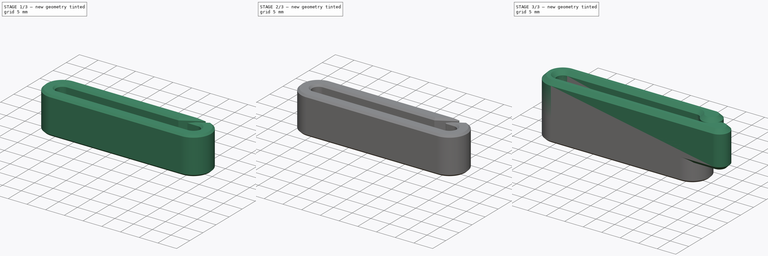
[diagram: build sequence overview — one tinted view per stage of 3, left to right]
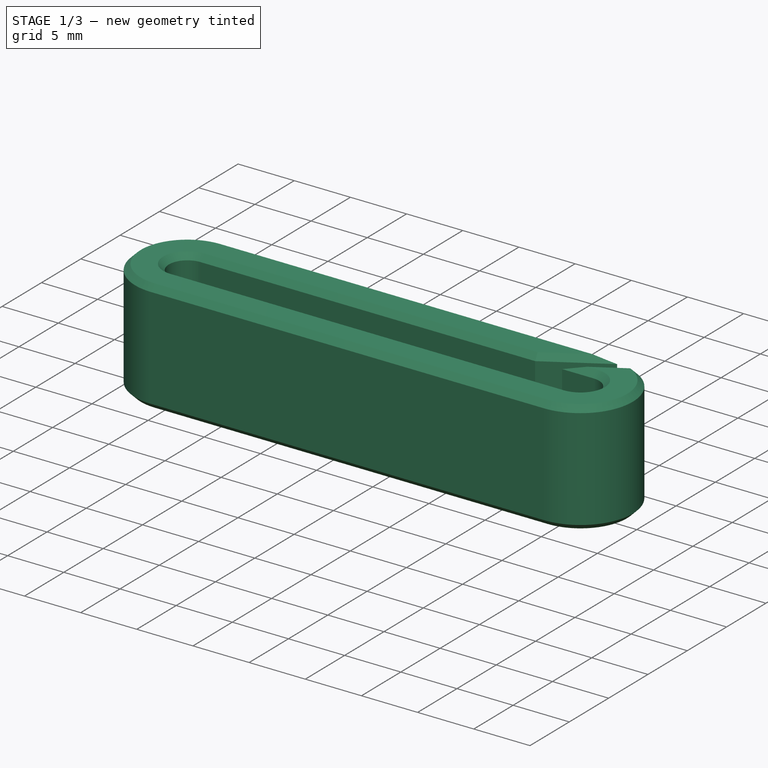
[diagram: stage 1 of 3 — iso view after this stage's code; geometry added in this stage tinted green]
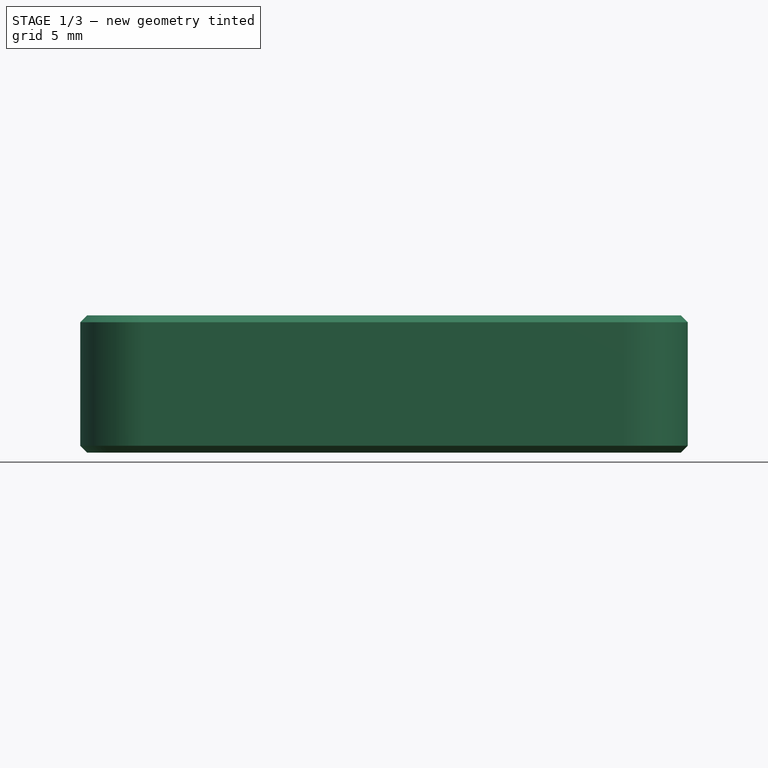
[diagram: stage 1 of 3 — front view after this stage's code; geometry added in this stage tinted green]
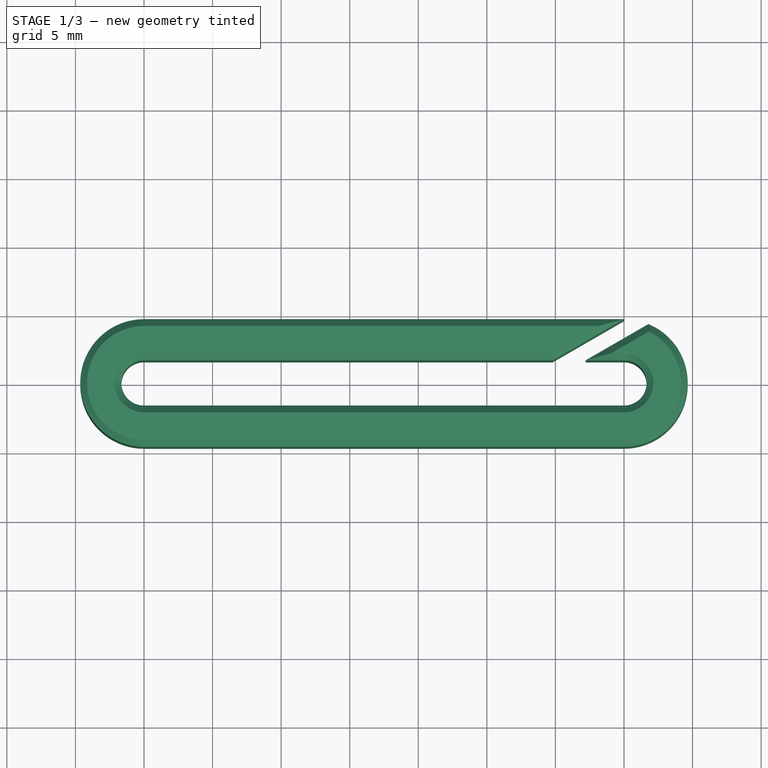
[diagram: stage 1 of 3 — top view after this stage's code; geometry added in this stage tinted green]
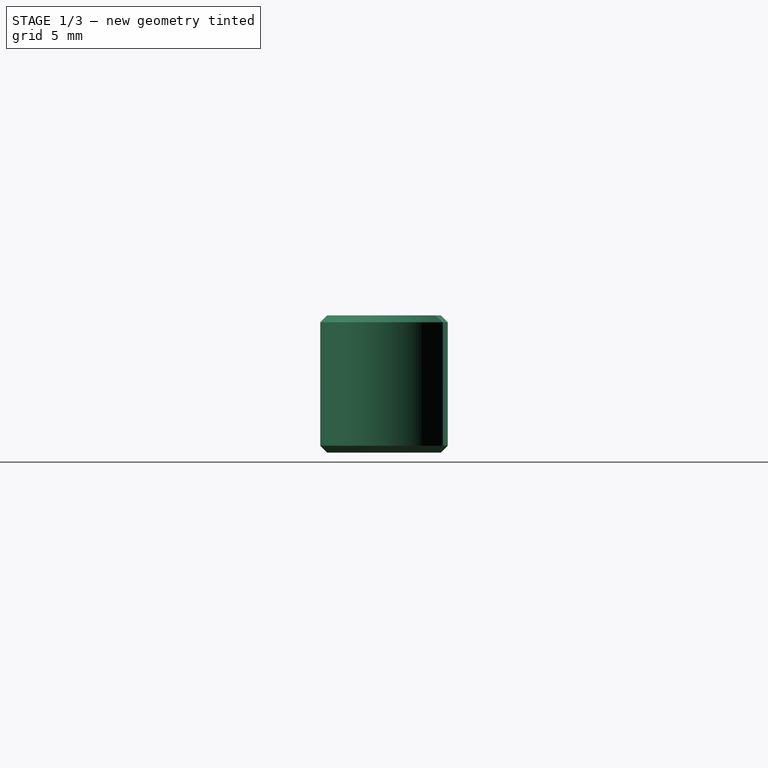
[diagram: stage 1 of 3 — right view after this stage's code; geometry added in this stage tinted green]
FCSTD DOCUMENT  (FreeCAD 2023.131R26244 +5365 (Git))
Label: belt clip
License: All rights reserved
LicenseURL: http://en.wikipedia.org/wiki/All_rights_reserved
objects: Sketcher::SketchObject×5, PartDesign::Pad×2, PartDesign::Chamfer×2, PartDesign::Body×2, PartDesign::Revolution×2, PartDesign::Pocket×1, PartDesign::Fillet×1
note: 36 computed .brp shape members not serialized (recipe doc carries the construction recipe); baked Part::Feature solids carry a one-line shape summary decoded from their .brp

FEATURE [PartDesign::Body] Body  label="clip"
  AutoGroupSolids = false
  ClaimAllChildren = false
  ExportMode = 0
  FixShape = 1
  Group = -> [Sketch,Pad,Chamfer]
  InvalidShape = false
  Origin = -> Origin
  Tip = -> Chamfer
  TreeRank = 12
  ValidateShape = false
  _ExportChildren = -> [Pad,Chamfer]
  _GroupVersion = 1
FEATURE [Sketcher::SketchObject] Sketch001
  ArcFitTolerance = 1e-06
  AttachmentSupport = -> [XY_Plane001]
  ExternalBSplineMaxDegree = 5
  ExternalBSplineTolerance = 0.0001
  FixShape = 1
  FullyConstrained = true
  InternalTolerance = 1e-06
  InvalidShape = false
  MakeInternals = false
  MapMode = 5
  Support = -> [XY_Plane001]
  TreeRank = 28
  ValidateShape = false
  sketch-geometry (11):
    g0: ArcOfCircle [constr] CenterX=0 CenterY=0 CenterZ=0 NormalX=0 NormalY=0 NormalZ=1 AngleXU=0 Radius=1.65 StartAngle=1.5708 EndAngle=4.71239
    g1: ArcOfCircle [constr] CenterX=35 CenterY=0 CenterZ=0 NormalX=0 NormalY=0 NormalZ=1 AngleXU=0 Radius=1.65 StartAngle=4.71239 EndAngle=7.85398
    g2: LineSegment StartX=0 StartY=-1.65 StartZ=0 EndX=35 EndY=-1.65 EndZ=0
    g3: LineSegment [constr] StartX=35 StartY=1.65 StartZ=0 EndX=0 EndY=1.65 EndZ=0
    g4: ArcOfCircle CenterX=0 CenterY=0 CenterZ=0 NormalX=0 NormalY=0 NormalZ=1 AngleXU=0 Radius=1.65 StartAngle=1.5708 EndAngle=4.71239
    g5: LineSegment StartX=35 StartY=1.65 StartZ=0 EndX=0 EndY=1.65 EndZ=0
    g6: ArcOfCircle CenterX=0 CenterY=0 CenterZ=0 NormalX=0 NormalY=0 NormalZ=1 AngleXU=0 Radius=4.65 StartAngle=1.5708 EndAngle=4.71239
    g7: ArcOfCircle CenterX=35 CenterY=-1e-16 CenterZ=0 NormalX=0 NormalY=0 NormalZ=1 AngleXU=0 Radius=1.65 StartAngle=4.71238 EndAngle=7.85398
    g8: ArcOfCircle CenterX=35 CenterY=-1e-16 CenterZ=0 NormalX=0 NormalY=0 NormalZ=1 AngleXU=0 Radius=4.65 StartAngle=4.71239 EndAngle=7.85398
    g9: LineSegment StartX=6e-16 StartY=4.65 StartZ=0 EndX=35 EndY=4.65 EndZ=0
    g10: LineSegment StartX=1.3402e-05 StartY=-4.65 StartZ=0 EndX=35 EndY=-4.65 EndZ=0
  constraints (25):
    c: Tangent(g0,g2) = -1.5708
    c: Tangent(g2,g1) = -1.5708
    c: Tangent(g1,g3) = -1.5708
    c: Tangent(g3,g0) = -1.5708
    c: Equal(g0,g1)
    c: Coincident(g0,g-1)
    c: PointOnObject(g1,g-1)
    c: DistanceX(g3,g3) = 35
    c: Diameter(g1) = 3.3
    c: Tangent(g5,g4) = -1.5708
    c: Coincident(g4,g0)
    c: Coincident(g6,g4)
    c: DistanceY(g4,g6) = 3
    c: Horizontal(g5)
    c: Tangent(g5,g7) = -1.5708
    c: Equal(g7,g1)
    c: Coincident(g7,g1)
    c: Coincident(g8,g7)
    c: Horizontal(g9)
    c: Coincident(g10,g6)
    c: Horizontal(g10)
    c: Tangent(g10,g8) = -1.5708
    c: Tangent(g9,g8) = 1.5708
    c: Tangent(g9,g6) = 1.5708
    c: Coincident(g2,g4)
FEATURE [PartDesign::Pad] Pad001
  AddSubType = 0
  AlongSketchNormal = false
  AutoTaperInnerAngle = true
  CheckUpToFaceLimits = true
  ClaimChildren = false
  Direction = (0,0,1)
  Fit = 0
  FitJoin = 0
  FixShape = 1
  InnerFit = 0
  InnerFitJoin = 0
  InvalidShape = false
  Length = 10
  Length2 = 100
  Linearize = true
  Midplane = true
  NewSolid = false
  Profile = -> Sketch001
  Refine = true
  Suppress = false
  TaperInnerAngle = 0
  TaperInnerAngleRev = 0
  TreeRank = 29
  Type = 0
  ValidateShape = false
  _ProfileBasedVersion = 1
FEATURE [Sketcher::SketchObject] Sketch002
  ArcFitTolerance = 1e-06
  AttachmentSupport = -> [XY_Plane001]
  ExternalBSplineMaxDegree = 5
  ExternalBSplineTolerance = 0.0001
  ExternalGeometry = -> [Sketch001]
  FixShape = 1
  FullyConstrained = true
  InternalTolerance = 1e-06
  InvalidShape = false
  MakeInternals = false
  MapMode = 5
  Support = -> [XY_Plane001]
  TreeRank = 30
  ValidateShape = false
  sketch-geometry (5):
    g0: LineSegment StartX=32.2039 StartY=1.65 StartZ=0 EndX=37.4 EndY=4.65 EndZ=0
    g1: LineSegment StartX=35 StartY=4.65 StartZ=0 EndX=29.8039 EndY=1.65 EndZ=0
    g2: LineSegment [constr] StartX=35 StartY=4.65 StartZ=0 EndX=35.6 EndY=3.61077 EndZ=0
    g3: LineSegment StartX=29.8039 StartY=1.65 StartZ=0 EndX=32.2039 EndY=1.65 EndZ=0
    g4: LineSegment StartX=35 StartY=4.65 StartZ=0 EndX=37.4 EndY=4.65 EndZ=0
  constraints (14):
    c: PointOnObject(g0,g-3)
    c: PointOnObject(g0,g-4)
    c: PointOnObject(g1,g-3)
    c: Coincident(g2,g1)
    c: PointOnObject(g2,g0)
    c: Parallel(g0,g1)
    c: Perpendicular(g0,g2)
    c: Coincident(g3,g1)
    c: Coincident(g3,g0)
    c: Coincident(g4,g1)
    c: Coincident(g4,g0)
    c: Distance(g2) = 1.2
    c: Coincident(g1,g-4)
    c: Angle(g0) = 0.523599
FEATURE [PartDesign::Pocket] Pocket
  AddSubType = 1
  AutoTaperInnerAngle = true
  BaseFeature = -> Pad001
  CheckUpToFaceLimits = true
  ClaimChildren = false
  Fit = 0
  FitJoin = 0
  FixShape = 1
  InnerFit = 0
  InnerFitJoin = 0
  InvalidShape = false
  Length = 5
  Length2 = 100
  Linearize = true
  Midplane = true
  NewSolid = false
  Profile = -> Sketch002
  Refine = true
  Suppress = false
  TaperInnerAngle = 0
  TaperInnerAngleRev = 0
  TreeRank = 31
  Type = 1
  ValidateShape = false
  _ProfileBasedVersion = 1
  _Version = 1
FEATURE [PartDesign::Chamfer] Chamfer001
  AddSubType = 0
  Angle = 45
  Base = -> Pocket [Face5,Face4]
  BaseFeature = -> Pocket
  ChamferType = 0
  FixShape = 1
  FlipDirection = false
  InvalidShape = false
  NewSolid = false
  Refine = true
  Size = 0.5
  Size2 = 1
  SupportTransform = false
  Suppress = false
  TreeRank = 32
  ValidateShape = false
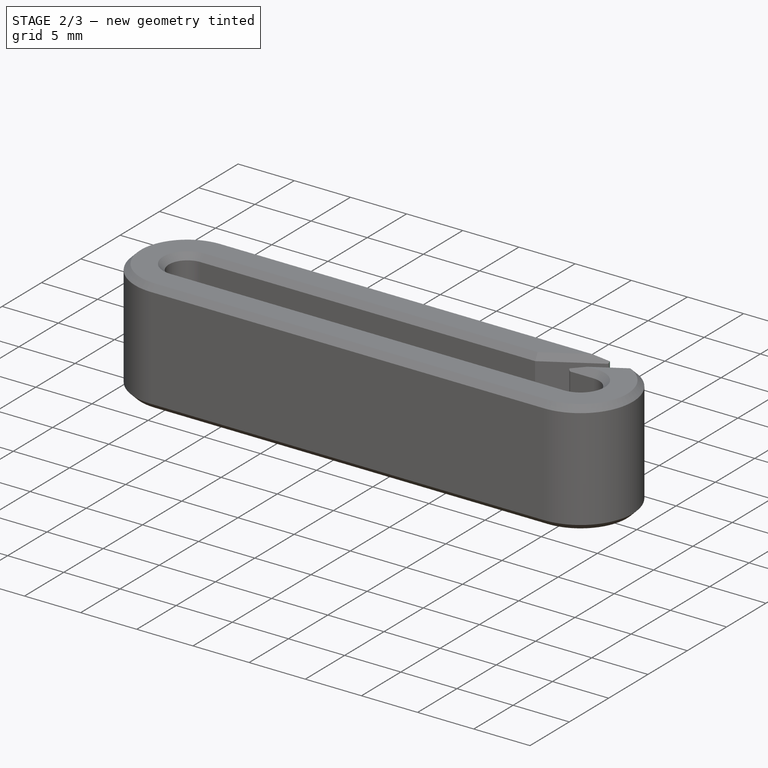
[diagram: stage 2 of 3 — iso view after this stage's code; geometry added in this stage tinted green]
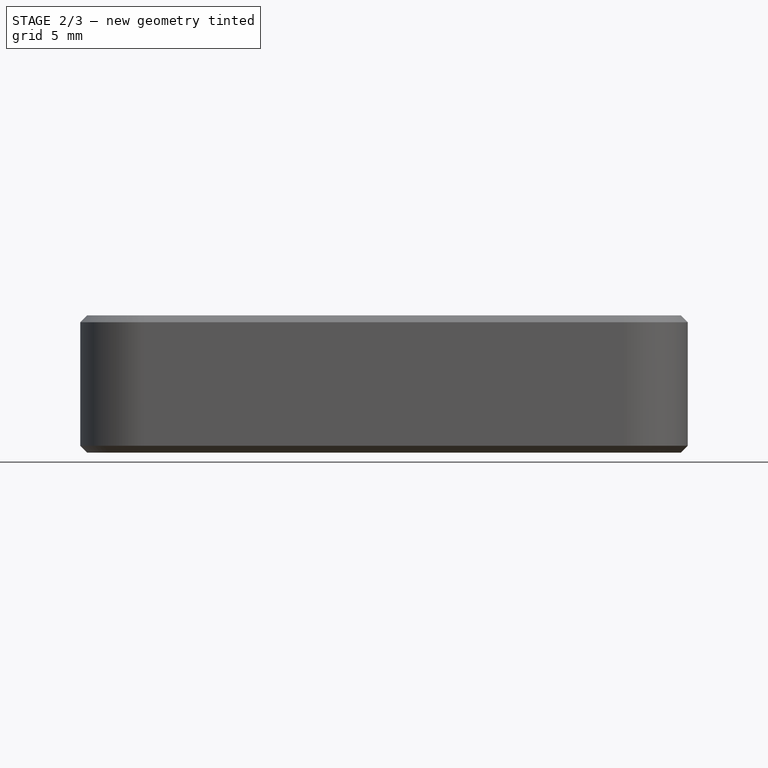
[diagram: stage 2 of 3 — front view after this stage's code; geometry added in this stage tinted green]
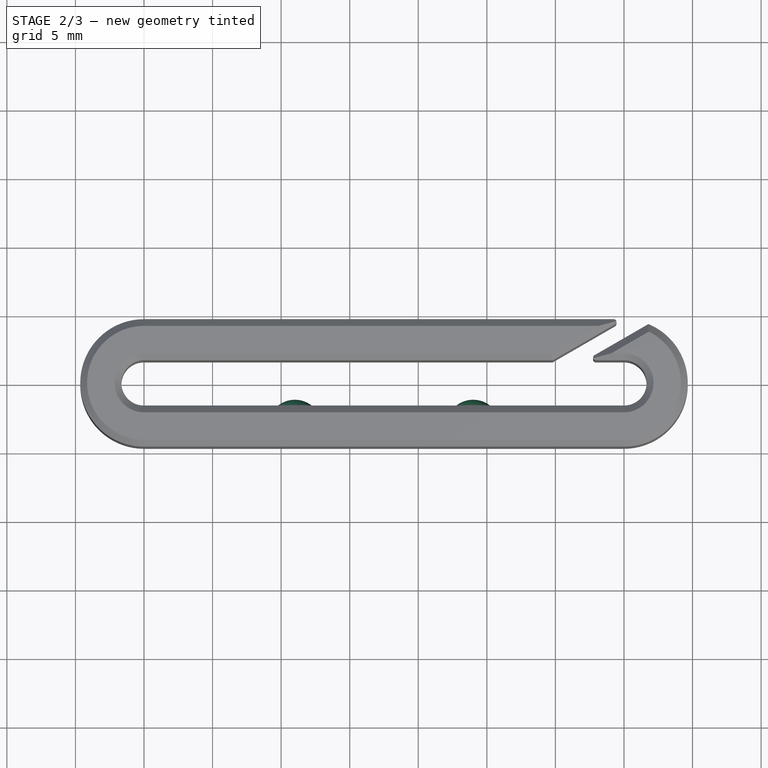
[diagram: stage 2 of 3 — top view after this stage's code; geometry added in this stage tinted green]
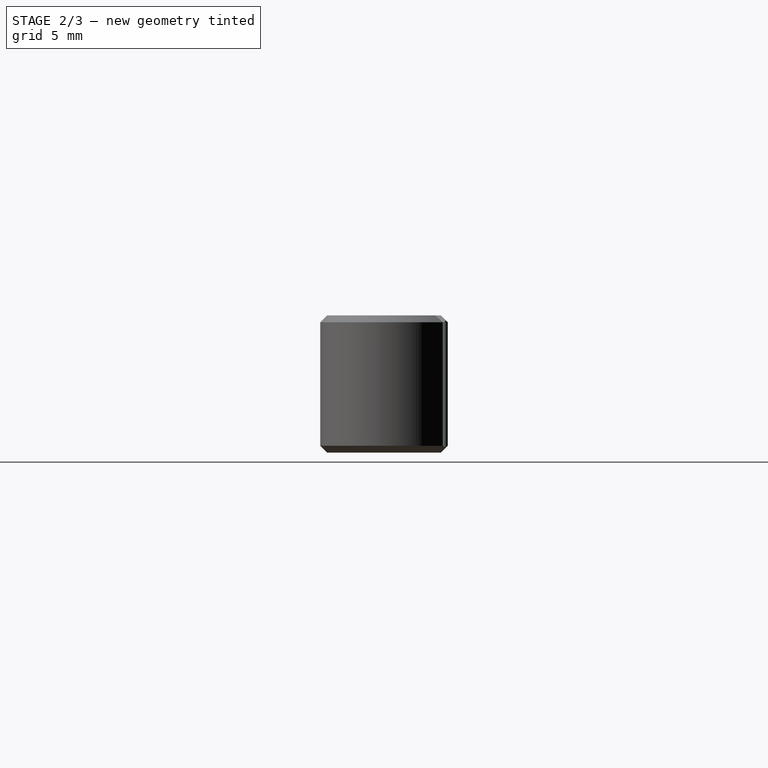
[diagram: stage 2 of 3 — right view after this stage's code; geometry added in this stage tinted green]
FEATURE [PartDesign::Fillet] Fillet
  AddSubType = 0
  Base = -> Chamfer001 [Edge74,Edge7]
  BaseFeature = -> Chamfer001
  FixShape = 1
  InvalidShape = false
  NewSolid = false
  Radius = 0.2
  Refine = true
  SupportTransform = false
  Suppress = false
  TreeRank = 33
  ValidateShape = false
FEATURE [Sketcher::SketchObject] Sketch003
  ArcFitTolerance = 1e-06
  AttachmentOffset = pos=(0,0,-1.5) rot=(0,0,1;0rad)
  AttachmentSupport = -> [Fillet]
  ExternalBSplineMaxDegree = 5
  ExternalBSplineTolerance = 0.0001
  ExternalGeometry = -> [Sketch001]
  FixShape = 1
  FullyConstrained = true
  InternalTolerance = 1e-06
  InvalidShape = false
  MakeInternals = false
  MapMode = 5
  Placement = pos=(0,-3.15,3e-16) rot=(0,0.707107,0.707107;3.14159rad)
  Support = -> [Fillet]
  TreeRank = 34
  ValidateShape = false
  sketch-geometry (11):
    g0: ArcOfCircle CenterX=-11 CenterY=0 CenterZ=0 NormalX=0 NormalY=0 NormalZ=1 AngleXU=0 Radius=2 StartAngle=0 EndAngle=3.14159
    g1: LineSegment StartX=-13 StartY=0 StartZ=0 EndX=-9 EndY=0 EndZ=0
    g2: LineSegment [constr] StartX=-13 StartY=0 StartZ=0 EndX=-11 EndY=0 EndZ=0
    g3: LineSegment [constr] StartX=-9 StartY=0 StartZ=0 EndX=-11 EndY=0 EndZ=0
    g4: ArcOfCircle CenterX=-24 CenterY=0 CenterZ=0 NormalX=0 NormalY=0 NormalZ=1 AngleXU=0 Radius=2 StartAngle=0 EndAngle=3.14159
    g5: LineSegment StartX=-26 StartY=0 StartZ=0 EndX=-22 EndY=0 EndZ=0
    g6: LineSegment [constr] StartX=-26 StartY=0 StartZ=0 EndX=-24 EndY=0 EndZ=0
    g7: LineSegment [constr] StartX=-22 StartY=0 StartZ=0 EndX=-24 EndY=0 EndZ=0
    g8: LineSegment [constr] StartX=-35 StartY=0 StartZ=0 EndX=-26 EndY=0 EndZ=0
    g9: LineSegment [constr] StartX=-22 StartY=0 StartZ=0 EndX=-13 EndY=0 EndZ=0
    g10: LineSegment [constr] StartX=-9 StartY=0 StartZ=0 EndX=0 EndY=0 EndZ=0
  constraints (28):
    c: PointOnObject(g0,g-1)
    c: PointOnObject(g0,g-1)
    c: Coincident(g1,g0)
    c: Coincident(g1,g0)
    c: Coincident(g2,g0)
    c: Coincident(g2,g0)
    c: Coincident(g3,g0)
    c: Coincident(g3,g0)
    c: Radius(g0) = 2
    c: Coincident(g5,g4)
    c: Coincident(g5,g4)
    c: Coincident(g6,g4)
    c: Coincident(g6,g4)
    c: Coincident(g7,g4)
    c: Coincident(g7,g4)
    c: Equal(g0,g4) = 2
    c: PointOnObject(g7,g-1)
    c: PointOnObject(g4,g-3)
    c: Coincident(g8,g-3)
    c: Coincident(g8,g4)
    c: Coincident(g9,g4)
    c: Coincident(g9,g0)
    c: Coincident(g10,g0)
    c: Coincident(g10,g-3)
    c: Equal(g8,g9)
    c: Equal(g9,g10)
    c: Horizontal(g0,g-3)
    c: Horizontal(g4,g-3)
FEATURE [PartDesign::Revolution] Revolution
  AddSubType = 0
  Angle = 180
  Axis = (-1,0,0)
  Base = (0,-3.15,3e-16)
  BaseFeature = -> Fillet
  ClaimChildren = false
  Fit = 0
  FitJoin = 0
  FixShape = 1
  InnerFit = 0
  InnerFitJoin = 0
  InvalidShape = false
  Linearize = true
  NewSolid = false
  Profile = -> Sketch003
  ReferenceAxis = -> Sketch003 [H_Axis]
  Refine = true
  Suppress = false
  TreeRank = 35
  ValidateShape = false
  _ProfileBasedVersion = 1
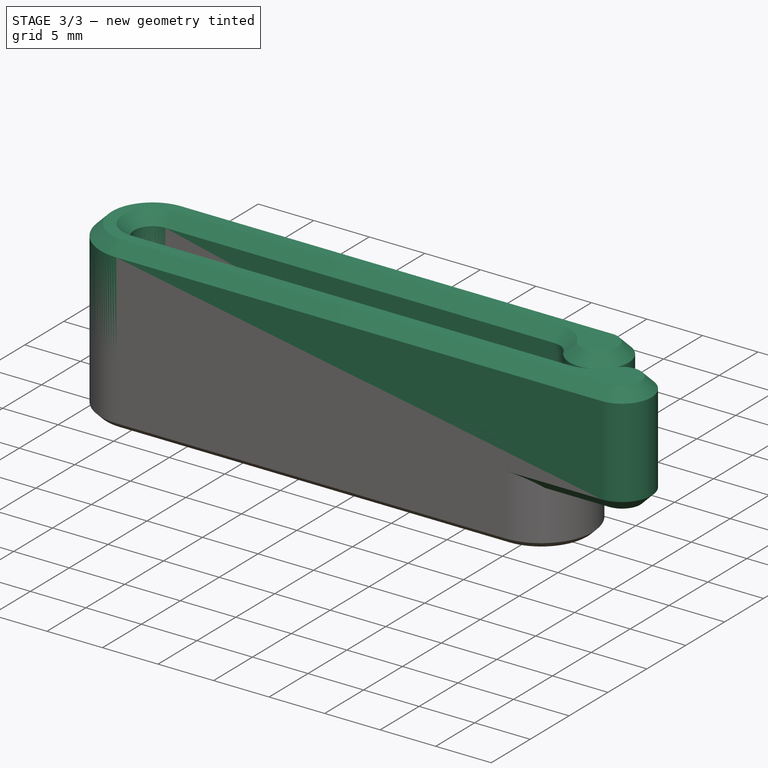
[diagram: stage 3 of 3 — iso view after this stage's code; geometry added in this stage tinted green]
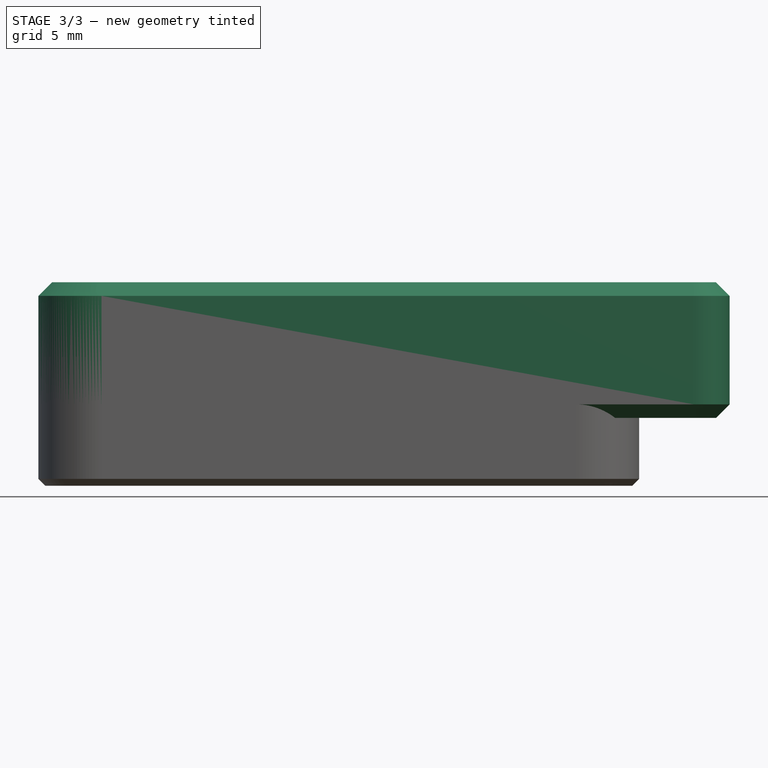
[diagram: stage 3 of 3 — front view after this stage's code; geometry added in this stage tinted green]
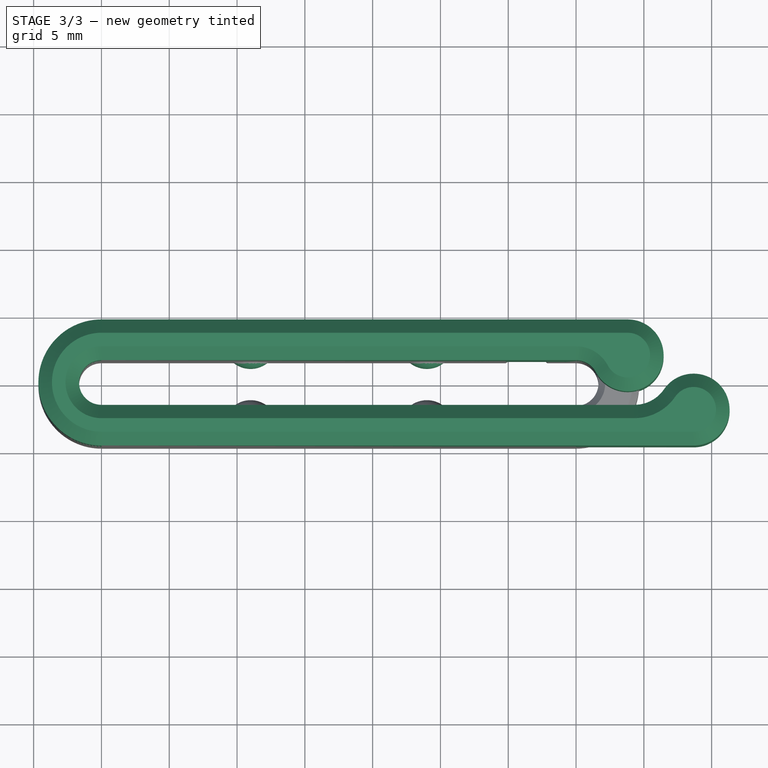
[diagram: stage 3 of 3 — top view after this stage's code; geometry added in this stage tinted green]
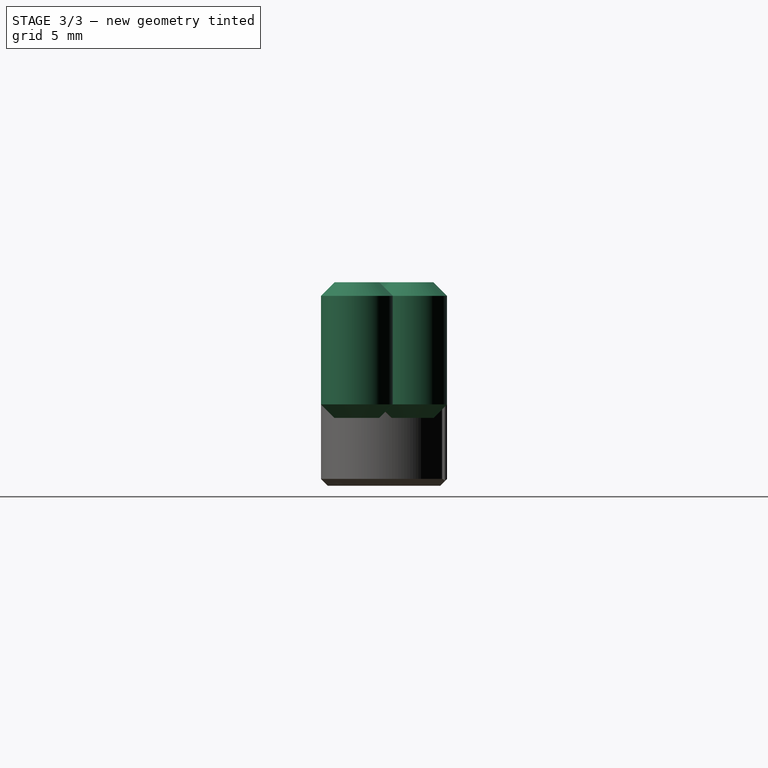
[diagram: stage 3 of 3 — right view after this stage's code; geometry added in this stage tinted green]
FEATURE [Sketcher::SketchObject] Sketch
  ArcFitTolerance = 1e-06
  AttachmentSupport = -> [XY_Plane]
  ExternalBSplineMaxDegree = 5
  ExternalBSplineTolerance = 0.0001
  FixShape = 1
  FullyConstrained = true
  InternalTolerance = 1e-06
  InvalidShape = false
  MakeInternals = false
  MapMode = 5
  Support = -> [XY_Plane]
  TreeRank = 13
  ValidateShape = false
  sketch-geometry (16):
    g0: ArcOfCircle [constr] CenterX=0 CenterY=0 CenterZ=0 NormalX=0 NormalY=0 NormalZ=1 AngleXU=0 Radius=1.65 StartAngle=1.5708 EndAngle=4.71239
    g1: ArcOfCircle [constr] CenterX=35 CenterY=0 CenterZ=0 NormalX=0 NormalY=0 NormalZ=1 AngleXU=0 Radius=1.65 StartAngle=4.71239 EndAngle=7.85398
    g2: LineSegment [constr] StartX=0 StartY=-1.65 StartZ=0 EndX=35 EndY=-1.65 EndZ=0
    g3: LineSegment [constr] StartX=35 StartY=1.65 StartZ=0 EndX=0 EndY=1.65 EndZ=0
    g4: ArcOfCircle CenterX=38.8066 CenterY=2 CenterZ=0 NormalX=0 NormalY=0 NormalZ=1 AngleXU=0 Radius=2.65 StartAngle=3.62536 EndAngle=7.85398
    g5: ArcOfCircle CenterX=43.6738 CenterY=-2 CenterZ=0 NormalX=0 NormalY=0 NormalZ=1 AngleXU=0 Radius=2.65 StartAngle=4.71239 EndAngle=8.82309
    g6: ArcOfCircle CenterX=0 CenterY=0 CenterZ=0 NormalX=0 NormalY=0 NormalZ=1 AngleXU=0 Radius=1.65 StartAngle=1.5708 EndAngle=4.71239
    g7: LineSegment StartX=0 StartY=-1.65 StartZ=0 EndX=39.3046 EndY=-1.65 EndZ=0
    g8: LineSegment StartX=35 StartY=1.65 StartZ=0 EndX=0 EndY=1.65 EndZ=0
    g9: ArcOfCircle CenterX=0 CenterY=0 CenterZ=0 NormalX=0 NormalY=0 NormalZ=1 AngleXU=0 Radius=4.65 StartAngle=1.5708 EndAngle=4.71239
    g10: LineSegment StartX=0 StartY=-4.65 StartZ=0 EndX=43.6738 EndY=-4.65 EndZ=0
    g11: LineSegment StartX=38.8066 StartY=4.65 StartZ=0 EndX=0 EndY=4.65 EndZ=0
    g12: LineSegment [constr] StartX=38.8066 StartY=-0.65 StartZ=0 EndX=38.8066 EndY=-1.65 EndZ=0
    g13: LineSegment [constr] StartX=40.8539 StartY=0.31746 StartZ=0 EndX=41.6265 EndY=-0.31746 EndZ=0
    g14: ArcOfCircle CenterX=39.3046 CenterY=1 CenterZ=0 NormalX=0 NormalY=0 NormalZ=1 AngleXU=0 Radius=2.65 StartAngle=4.71239 EndAngle=5.68149
    g15: ArcOfCircle CenterX=35 CenterY=1e-16 CenterZ=0 NormalX=0 NormalY=0 NormalZ=1 AngleXU=0 Radius=1.65 StartAngle=0.483766 EndAngle=1.5708
  constraints (41):
    c: Tangent(g0,g2) = -1.5708
    c: Tangent(g2,g1) = -1.5708
    c: Tangent(g1,g3) = -1.5708
    c: Tangent(g3,g0) = -1.5708
    c: Equal(g0,g1)
    c: Coincident(g0,g-1)
    c: PointOnObject(g1,g-1)
    c: DistanceX(g3,g3) = 35
    c: Diameter(g1) = 3.3
    c: Tangent(g6,g7) = -1.5708
    c: Tangent(g8,g6) = -1.5708
    c: Coincident(g6,g0)
    c: Tangent(g9,g10) = -1.5708
    c: Tangent(g11,g9) = -1.5708
    c: Coincident(g9,g6)
    c: DistanceY(g6,g9) = 3
    c: Horizontal(g10)
    c: Horizontal(g7)
    c: Equal(g6,g0)
    c: Horizontal(g8)
    c: Horizontal(g11)
    c: Tangent(g5,g10) = -1.5708
    c: Tangent(g4,g11) = -1.5708
    c: Tangent(g4,g1)
    c: PointOnObject(g12,g4)
    c: PointOnObject(g12,g7)
    c: Vertical(g12)
    c: Perpendicular(g4,g12)
    c: DistanceY(g12,g12) = 1
    c: PointOnObject(g13,g4)
    c: PointOnObject(g13,g5)
    c: Perpendicular(g4,g13)
    c: Perpendicular(g5,g13)
    c: Equal(g4,g5)
    c: Equal(g12,g13)
    c: Tangent(g7,g14) = -1.5708
    c: Tangent(g5,g14) = 1.5708
    c: Tangent(g8,g15) = -1.5708
    c: Tangent(g4,g15) = 1.5708
    c: Equal(g5,g14)
    c: Equal(g15,g1)
FEATURE [PartDesign::Pad] Pad
  AddSubType = 0
  AlongSketchNormal = false
  AutoTaperInnerAngle = true
  CheckUpToFaceLimits = true
  ClaimChildren = false
  Direction = (0,0,1)
  Fit = 0
  FitJoin = 0
  FixShape = 1
  InnerFit = 0
  InnerFitJoin = 0
  InvalidShape = false
  Length = 10
  Length2 = 100
  Linearize = true
  NewSolid = false
  Profile = -> Sketch
  Refine = true
  Suppress = false
  TaperInnerAngle = 0
  TaperInnerAngleRev = 0
  TreeRank = 14
  Type = 0
  ValidateShape = false
  _ProfileBasedVersion = 1
FEATURE [PartDesign::Chamfer] Chamfer
  AddSubType = 0
  Angle = 45
  Base = -> Pad [Face12,Face11]
  BaseFeature = -> Pad
  ChamferType = 0
  FixShape = 1
  FlipDirection = false
  InvalidShape = false
  NewSolid = false
  Refine = true
  Size = 1
  Size2 = 1
  SupportTransform = false
  Suppress = false
  TreeRank = 15
  ValidateShape = false
FEATURE [Sketcher::SketchObject] Sketch004
  ArcFitTolerance = 1e-06
  AttachmentOffset = pos=(0,0,-1.5) rot=(0,0,1;0rad)
  AttachmentSupport = -> [Revolution]
  ExternalBSplineMaxDegree = 5
  ExternalBSplineTolerance = 0.0001
  ExternalGeometry = -> [Sketch001]
  FixShape = 1
  FullyConstrained = true
  InternalTolerance = 1e-06
  InvalidShape = false
  MakeInternals = false
  MapMode = 5
  Placement = pos=(0,3.15,-3e-16) rot=(1,0,0;1.5708rad)
  Support = -> [Revolution]
  TreeRank = 36
  ValidateShape = false
  expr: Constraints[8] = Sketch003.Constraints[8]
  sketch-geometry (11):
    g0: ArcOfCircle CenterX=11 CenterY=-7e-16 CenterZ=0 NormalX=0 NormalY=0 NormalZ=1 AngleXU=0 Radius=2 StartAngle=-8.08e-14 EndAngle=3.14159
    g1: LineSegment StartX=9 StartY=0 StartZ=0 EndX=13 EndY=0 EndZ=0
    g2: LineSegment [constr] StartX=9 StartY=0 StartZ=0 EndX=11 EndY=-7e-16 EndZ=0
    g3: LineSegment [constr] StartX=13 StartY=0 StartZ=0 EndX=11 EndY=-7e-16 EndZ=0
    g4: ArcOfCircle CenterX=24 CenterY=-7e-16 CenterZ=0 NormalX=0 NormalY=0 NormalZ=1 AngleXU=0 Radius=2 StartAngle=-7.82e-14 EndAngle=3.14159
    g5: LineSegment StartX=22 StartY=-7e-16 StartZ=0 EndX=26 EndY=0 EndZ=0
    g6: LineSegment [constr] StartX=22 StartY=-7e-16 StartZ=0 EndX=24 EndY=-7e-16 EndZ=0
    g7: LineSegment [constr] StartX=26 StartY=0 StartZ=0 EndX=24 EndY=-7e-16 EndZ=0
    g8: LineSegment [constr] StartX=0 StartY=-7e-16 StartZ=0 EndX=9 EndY=0 EndZ=0
    g9: LineSegment [constr] StartX=35 StartY=-7e-16 StartZ=0 EndX=26 EndY=0 EndZ=0
    g10: LineSegment [constr] StartX=13 StartY=0 StartZ=0 EndX=22 EndY=-7e-16 EndZ=0
  constraints (28):
    c: PointOnObject(g0,g-1)
    c: PointOnObject(g0,g-1)
    c: Coincident(g1,g0)
    c: Coincident(g1,g0)
    c: Coincident(g2,g0)
    c: Coincident(g2,g0)
    c: Coincident(g3,g0)
    c: Coincident(g3,g0)
    c: Radius(g0) = 2
    c: Coincident(g5,g4)
    c: Coincident(g5,g4)
    c: Coincident(g6,g4)
    c: Coincident(g6,g4)
    c: Coincident(g7,g4)
    c: Coincident(g7,g4)
    c: Equal(g0,g4) = 2
    c: PointOnObject(g7,g-1)
    c: PointOnObject(g4,g-3)
    c: Horizontal(g0,g-3)
    c: Horizontal(g4,g-3)
    c: Coincident(g8,g-3)
    c: Coincident(g8,g0)
    c: Coincident(g9,g-3)
    c: Coincident(g9,g4)
    c: Coincident(g10,g0)
    c: Coincident(g10,g4)
    c: Equal(g8,g10)
    c: Equal(g10,g9)
FEATURE [PartDesign::Revolution] Revolution001
  AddSubType = 0
  Angle = 180
  Axis = (1,0,0)
  Base = (0,3.15,-3e-16)
  BaseFeature = -> Revolution
  ClaimChildren = false
  Fit = 0
  FitJoin = 0
  FixShape = 1
  InnerFit = 0
  InnerFitJoin = 0
  InvalidShape = false
  Linearize = true
  NewSolid = false
  Profile = -> Sketch004
  ReferenceAxis = -> Sketch004 [H_Axis]
  Refine = true
  Suppress = false
  TreeRank = 37
  ValidateShape = false
  _ProfileBasedVersion = 1
FEATURE [PartDesign::Body] Body001  label="clip2"
  AutoGroupSolids = false
  ClaimAllChildren = false
  ExportMode = 0
  FixShape = 1
  Group = -> [Sketch001,Pad001,Sketch002,Pocket,Chamfer001,Fillet,Sketch003,Revolution,Sketch004,Revolution001]
  InvalidShape = false
  Origin = -> Origin001
  Tip = -> Revolution001
  TreeRank = 27
  ValidateShape = false
  _ExportChildren = -> [Pad001,Pocket,Chamfer001,Fillet,Revolution,Revolution001]
  _GroupVersion = 1
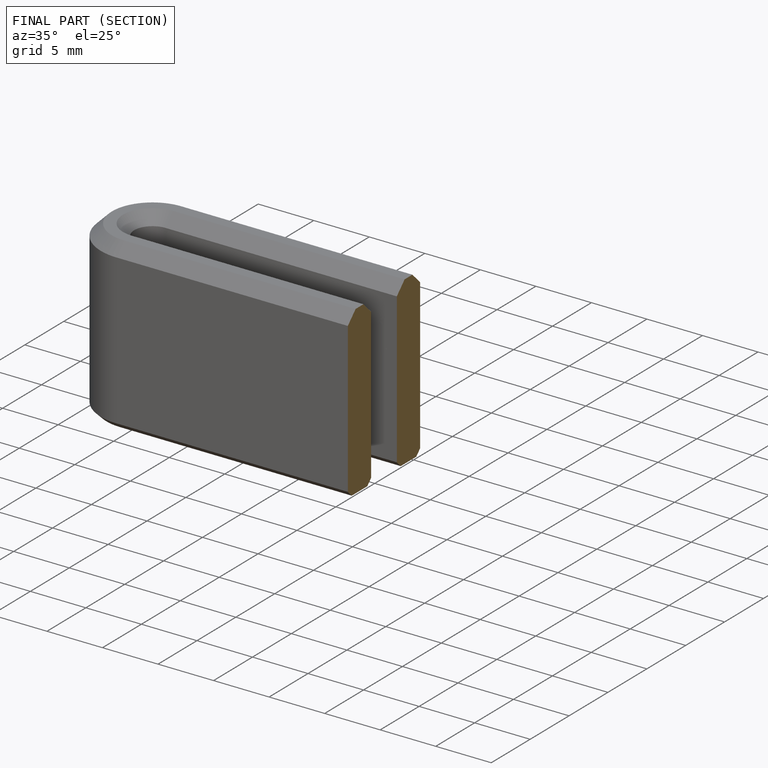
[diagram: finished part — half-section view (interior)]
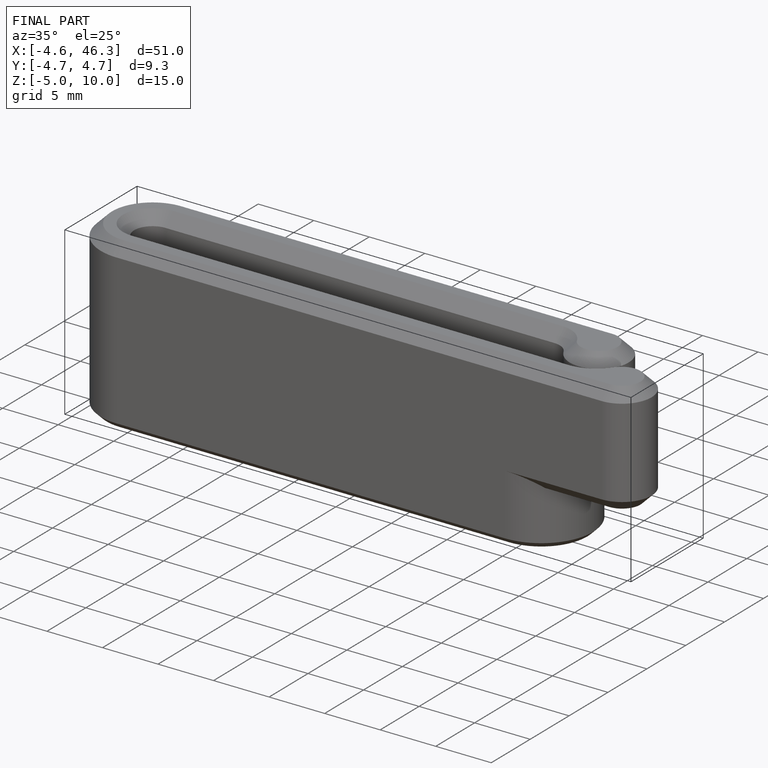
[diagram: finished part — iso view with bounding-box wireframe]
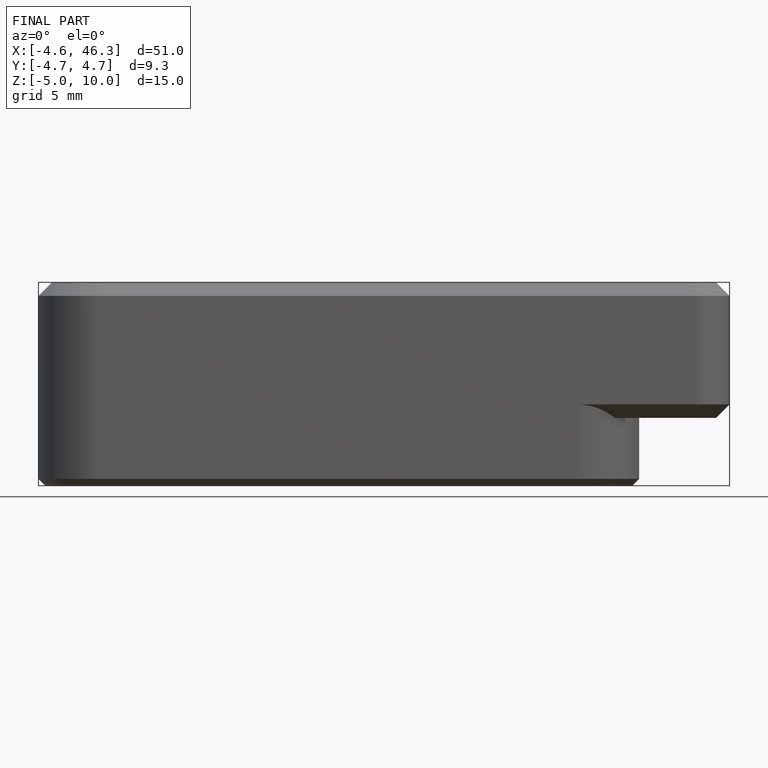
[diagram: finished part — front view with bounding-box wireframe]
